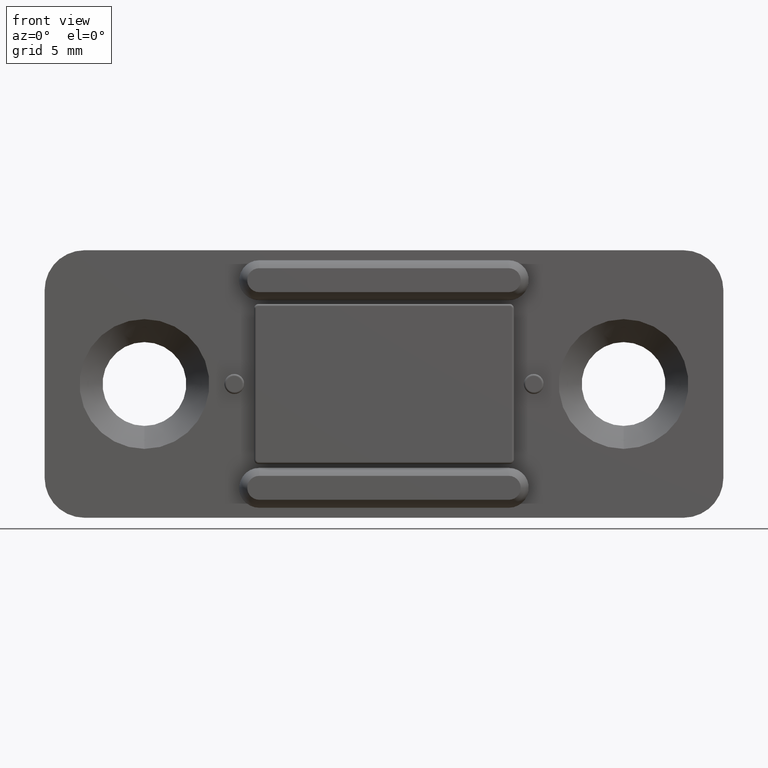
[diagram: clean part render]
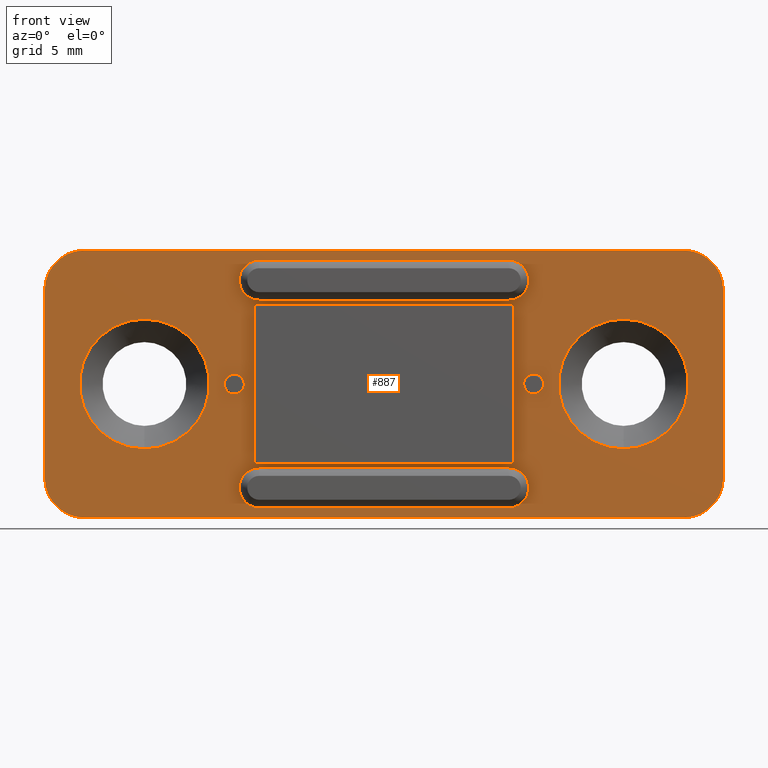
[diagram: same view with one face highlighted and labeled with its STEP entity id]
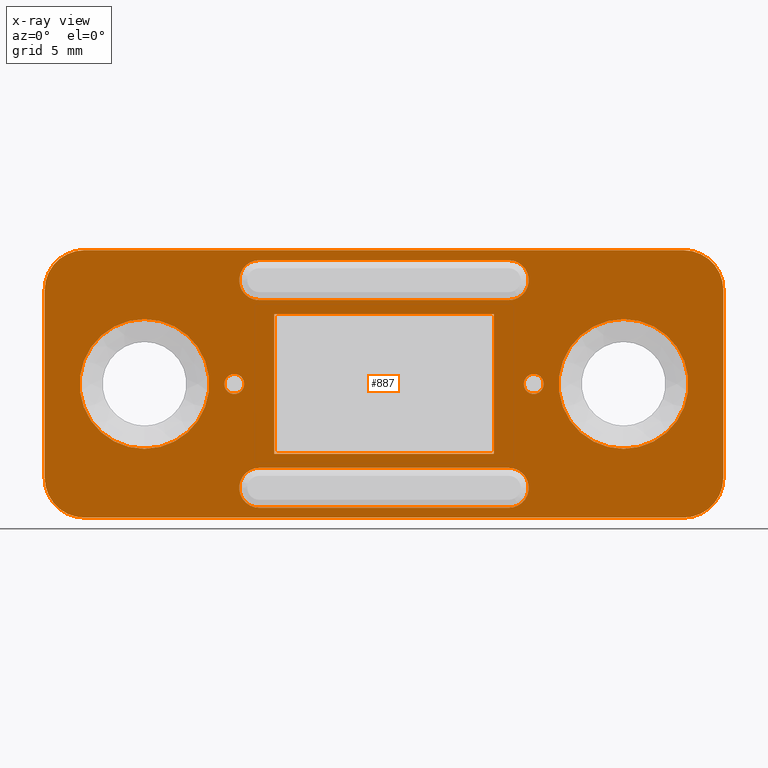
[diagram: x-ray of the same camera — body ghosted, the highlighted face saturated]
A machine part, front view. The second image highlights one B-rep face of the part: STEP entity #887.
The next image is the same camera in x-ray: the body ghosted, the highlighted face saturated — about 0% of this face is hidden behind the body in this view.
In plain terms, the highlighted planar face has unit normal (0, 1, 0).
Its self-contained STEP definition (entity closure, byte-faithful):
#4 = EDGE_LOOP ( 'NONE', ( #728, #1283 ) ) ;
#17 = ORIENTED_EDGE ( 'NONE', *, *, #408, .F. ) ;
#24 = CARTESIAN_POINT ( 'NONE',  ( -12.00000000000000000, 1.989519660128279800E-013, -3.250000000000206100 ) ) ;
#36 = VECTOR ( 'NONE', #1925, 1000.000000000000000 ) ;
#46 = ORIENTED_EDGE ( 'NONE', *, *, #2018, .F. ) ;
#58 = ORIENTED_EDGE ( 'NONE', *, *, #1915, .T. ) ;
#59 = CIRCLE ( 'NONE', #1117, 1.000000000000000000 ) ;
#60 = AXIS2_PLACEMENT_3D ( 'NONE', #1876, #2050, #850 ) ;
#72 = EDGE_CURVE ( 'NONE', #1140, #635, #1434, .T. ) ;
#73 = DIRECTION ( 'NONE',  ( 0.0000000000000000000, 0.0000000000000000000, -1.000000000000000000 ) ) ;
#74 = CARTESIAN_POINT ( 'NONE',  ( 0.0000000000000000000, 0.0000000000000000000, 6.699999999999900700 ) ) ;
#85 = CARTESIAN_POINT ( 'NONE',  ( 12.00000000000000000, 0.0000000000000000000, 0.0000000000000000000 ) ) ;
#86 = CIRCLE ( 'NONE', #973, 3.250000000000229600 ) ;
#104 = ORIENTED_EDGE ( 'NONE', *, *, #127, .T. ) ;
#109 = VERTEX_POINT ( 'NONE', #2025 ) ;
#125 = CIRCLE ( 'NONE', #390, 0.5000000000000000000 ) ;
#127 = EDGE_CURVE ( 'NONE', #1118, #305, #1324, .T. ) ;
#140 = CIRCLE ( 'NONE', #830, 2.000000000000000000 ) ;
#157 = CARTESIAN_POINT ( 'NONE',  ( 0.0000000000000000000, 0.0000000000000000000, -3.500000000000000000 ) ) ;
#166 = VERTEX_POINT ( 'NONE', #998 ) ;
#170 = VERTEX_POINT ( 'NONE', #24 ) ;
#173 = VECTOR ( 'NONE', #1658, 1000.000000000000000 ) ;
#182 = DIRECTION ( 'NONE',  ( 0.0000000000000000000, 1.000000000000000000, 0.0000000000000000000 ) ) ;
#211 = FACE_BOUND ( 'NONE', #398, .T. ) ;
#215 = VERTEX_POINT ( 'NONE', #1995 ) ;
#224 = EDGE_CURVE ( 'NONE', #725, #1118, #729, .T. ) ;
#228 = DIRECTION ( 'NONE',  ( 0.0000000000000000000, 1.000000000000000000, 0.0000000000000000000 ) ) ;
#271 = FACE_BOUND ( 'NONE', #4, .T. ) ;
#281 = EDGE_CURVE ( 'NONE', #946, #529, #140, .T. ) ;
#282 = VECTOR ( 'NONE', #1068, 1000.000000000000000 ) ;
#284 = DIRECTION ( 'NONE',  ( 0.0000000000000000000, 1.000000000000000000, 0.0000000000000000000 ) ) ;
#305 = VERTEX_POINT ( 'NONE', #868 ) ;
#306 = EDGE_LOOP ( 'NONE', ( #46, #1388 ) ) ;
#310 = EDGE_CURVE ( 'NONE', #1957, #725, #1821, .T. ) ;
#311 = CARTESIAN_POINT ( 'NONE',  ( -17.00000000000000000, 0.0000000000000000000, -4.700000000000000200 ) ) ;
#314 = VERTEX_POINT ( 'NONE', #1548 ) ;
#317 = DIRECTION ( 'NONE',  ( -0.0000000000000000000, -1.000000000000000000, -0.0000000000000000000 ) ) ;
#345 = EDGE_CURVE ( 'NONE', #1084, #2161, #518, .T. ) ;
#352 = EDGE_LOOP ( 'NONE', ( #1728, #1219, #630, #859 ) ) ;
#367 = FACE_BOUND ( 'NONE', #439, .T. ) ;
#375 = EDGE_CURVE ( 'NONE', #1524, #946, #963, .T. ) ;
#384 = VECTOR ( 'NONE', #2081, 1000.000000000000000 ) ;
#385 = CARTESIAN_POINT ( 'NONE',  ( 5.500000000000000000, 0.0000000000000000000, 3.500000000000000000 ) ) ;
#390 = AXIS2_PLACEMENT_3D ( 'NONE', #1611, #1492, #1469 ) ;
#398 = EDGE_LOOP ( 'NONE', ( #1700, #2049, #588, #17 ) ) ;
#402 = ORIENTED_EDGE ( 'NONE', *, *, #310, .T. ) ;
#408 = EDGE_CURVE ( 'NONE', #471, #1646, #698, .T. ) ;
#419 = CARTESIAN_POINT ( 'NONE',  ( 5.500000000000000000, 0.0000000000000000000, 0.0000000000000000000 ) ) ;
#436 = LINE ( 'NONE', #74, #384 ) ;
#439 = EDGE_LOOP ( 'NONE', ( #690, #497 ) ) ;
#465 = CARTESIAN_POINT ( 'NONE',  ( 7.500000000000000000, 0.0000000000000000000, -0.5000000000000000000 ) ) ;
#471 = VERTEX_POINT ( 'NONE', #925 ) ;
#474 = VERTEX_POINT ( 'NONE', #702 ) ;
#476 = ORIENTED_EDGE ( 'NONE', *, *, #596, .T. ) ;
#497 = ORIENTED_EDGE ( 'NONE', *, *, #1834, .F. ) ;
#515 = CIRCLE ( 'NONE', #746, 2.000000000000000000 ) ;
#518 = CIRCLE ( 'NONE', #1498, 0.5000000000000000000 ) ;
#529 = VERTEX_POINT ( 'NONE', #1881 ) ;
#546 = LINE ( 'NONE', #1467, #1378 ) ;
#550 = VERTEX_POINT ( 'NONE', #465 ) ;
#584 = EDGE_CURVE ( 'NONE', #471, #904, #59, .T. ) ;
#588 = ORIENTED_EDGE ( 'NONE', *, *, #1025, .T. ) ;
#594 = EDGE_LOOP ( 'NONE', ( #1352, #862, #1301, #58, #2154, #833, #780, #1221 ) ) ;
#596 = EDGE_CURVE ( 'NONE', #635, #1140, #1213, .T. ) ;
#597 = CARTESIAN_POINT ( 'NONE',  ( -12.00000000000000000, 1.989519660128279800E-013, 0.0000000000000000000 ) ) ;
#621 = VECTOR ( 'NONE', #1150, 1000.000000000000000 ) ;
#630 = ORIENTED_EDGE ( 'NONE', *, *, #2074, .T. ) ;
#635 = VERTEX_POINT ( 'NONE', #1943 ) ;
#646 = FACE_OUTER_BOUND ( 'NONE', #594, .T. ) ;
#652 = CARTESIAN_POINT ( 'NONE',  ( 0.0000000000000000000, 0.0000000000000000000, 0.0000000000000000000 ) ) ;
#661 = CARTESIAN_POINT ( 'NONE',  ( 15.00000000000000000, 0.0000000000000000000, 4.699999999999900700 ) ) ;
#664 = DIRECTION ( 'NONE',  ( -1.000000000000000000, -0.0000000000000000000, -0.0000000000000000000 ) ) ;
#665 = DIRECTION ( 'NONE',  ( -0.0000000000000000000, -1.000000000000000000, -0.0000000000000000000 ) ) ;
#666 = LINE ( 'NONE', #864, #621 ) ;
#667 = DIRECTION ( 'NONE',  ( 0.0000000000000000000, 0.0000000000000000000, 1.000000000000000000 ) ) ;
#672 = DIRECTION ( 'NONE',  ( -0.0000000000000000000, -0.0000000000000000000, 1.000000000000000000 ) ) ;
#685 = DIRECTION ( 'NONE',  ( 0.0000000000000000000, 0.0000000000000000000, 1.000000000000000000 ) ) ;
#690 = ORIENTED_EDGE ( 'NONE', *, *, #1725, .F. ) ;
#698 = LINE ( 'NONE', #1076, #1248 ) ;
#702 = CARTESIAN_POINT ( 'NONE',  ( 17.00000000000000000, 0.0000000000000000000, 4.699999999999900700 ) ) ;
#703 = AXIS2_PLACEMENT_3D ( 'NONE', #1433, #284, #1266 ) ;
#705 = CARTESIAN_POINT ( 'NONE',  ( -15.00000000000000000, 0.0000000000000000000, -4.700000000000000200 ) ) ;
#707 = LINE ( 'NONE', #157, #173 ) ;
#721 = AXIS2_PLACEMENT_3D ( 'NONE', #1471, #317, #1302 ) ;
#725 = VERTEX_POINT ( 'NONE', #1797 ) ;
#728 = ORIENTED_EDGE ( 'NONE', *, *, #918, .T. ) ;
#729 = CIRCLE ( 'NONE', #60, 1.000000000000000000 ) ;
#741 = EDGE_CURVE ( 'NONE', #215, #1008, #515, .T. ) ;
#746 = AXIS2_PLACEMENT_3D ( 'NONE', #1710, #1888, #685 ) ;
#751 = DIRECTION ( 'NONE',  ( -0.0000000000000000000, -0.0000000000000000000, -1.000000000000000000 ) ) ;
#758 = DIRECTION ( 'NONE',  ( 0.0000000000000000000, 0.0000000000000000000, 1.000000000000000000 ) ) ;
#759 = CARTESIAN_POINT ( 'NONE',  ( -5.500000000000000000, 0.0000000000000000000, 3.500000000000000000 ) ) ;
#780 = ORIENTED_EDGE ( 'NONE', *, *, #1744, .T. ) ;
#789 = DIRECTION ( 'NONE',  ( 0.0000000000000000000, 1.000000000000000000, 0.0000000000000000000 ) ) ;
#797 = EDGE_CURVE ( 'NONE', #109, #170, #86, .T. ) ;
#809 = EDGE_LOOP ( 'NONE', ( #1369, #402, #1332, #104 ) ) ;
#822 = CARTESIAN_POINT ( 'NONE',  ( 0.0000000000000000000, 0.0000000000000000000, 4.200000000000000200 ) ) ;
#826 = DIRECTION ( 'NONE',  ( 0.0000000000000000000, -1.000000000000000000, 0.0000000000000000000 ) ) ;
#830 = AXIS2_PLACEMENT_3D ( 'NONE', #705, #1901, #875 ) ;
#833 = ORIENTED_EDGE ( 'NONE', *, *, #1931, .T. ) ;
#850 = DIRECTION ( 'NONE',  ( 0.0000000000000000000, 0.0000000000000000000, 1.000000000000000000 ) ) ;
#855 = CARTESIAN_POINT ( 'NONE',  ( -6.250000000000000000, 0.0000000000000000000, -5.200000000000000200 ) ) ;
#859 = ORIENTED_EDGE ( 'NONE', *, *, #1999, .T. ) ;
#862 = ORIENTED_EDGE ( 'NONE', *, *, #375, .T. ) ;
#863 = CARTESIAN_POINT ( 'NONE',  ( 12.00000000000000000, 0.0000000000000000000, -3.250000000004204600 ) ) ;
#864 = CARTESIAN_POINT ( 'NONE',  ( 7.250000000000460100, 0.0000000000000000000, -4.200000000000000200 ) ) ;
#866 = CIRCLE ( 'NONE', #984, 0.5000000000000000000 ) ;
#868 = CARTESIAN_POINT ( 'NONE',  ( -6.250000000000110100, 0.0000000000000000000, 4.200000000000000200 ) ) ;
#875 = DIRECTION ( 'NONE',  ( 0.0000000000000000000, 0.0000000000000000000, 1.000000000000000000 ) ) ;
#885 = CARTESIAN_POINT ( 'NONE',  ( -5.500000000000000000, 0.0000000000000000000, 0.0000000000000000000 ) ) ;
#887 = ADVANCED_FACE ( 'NONE', ( #2010, #367, #1131, #271, #1533, #1079, #646, #211 ), #1148, .F. ) ;
#892 = CARTESIAN_POINT ( 'NONE',  ( -7.500000000000000000, 0.0000000000000000000, 0.0000000000000000000 ) ) ;
#904 = VERTEX_POINT ( 'NONE', #979 ) ;
#918 = EDGE_CURVE ( 'NONE', #170, #109, #1898, .T. ) ;
#925 = CARTESIAN_POINT ( 'NONE',  ( -6.250000000000000000, 0.0000000000000000000, -6.200000000000000200 ) ) ;
#930 = EDGE_CURVE ( 'NONE', #1675, #1113, #546, .T. ) ;
#946 = VERTEX_POINT ( 'NONE', #311 ) ;
#951 = DIRECTION ( 'NONE',  ( 0.0000000000000000000, 1.000000000000000000, 0.0000000000000000000 ) ) ;
#962 = CARTESIAN_POINT ( 'NONE',  ( 6.249999999999889900, 0.0000000000000000000, -6.200000000000000200 ) ) ;
#963 = LINE ( 'NONE', #2100, #36 ) ;
#968 = DIRECTION ( 'NONE',  ( 0.0000000000000000000, 1.000000000000000000, 0.0000000000000000000 ) ) ;
#973 = AXIS2_PLACEMENT_3D ( 'NONE', #597, #1771, #758 ) ;
#979 = CARTESIAN_POINT ( 'NONE',  ( -6.250000000000000000, 0.0000000000000000000, -4.200000000000000200 ) ) ;
#984 = AXIS2_PLACEMENT_3D ( 'NONE', #1671, #1496, #1716 ) ;
#998 = CARTESIAN_POINT ( 'NONE',  ( 7.500000000000000000, 0.0000000000000000000, 0.5000000000000000000 ) ) ;
#1008 = VERTEX_POINT ( 'NONE', #1977 ) ;
#1025 = EDGE_CURVE ( 'NONE', #1194, #1646, #1211, .T. ) ;
#1030 = CARTESIAN_POINT ( 'NONE',  ( 6.250000000000000000, 0.0000000000000000000, 4.200000000000000200 ) ) ;
#1039 = CARTESIAN_POINT ( 'NONE',  ( -7.500000000000000000, 0.0000000000000000000, -0.5000000000000000000 ) ) ;
#1045 = DIRECTION ( 'NONE',  ( 0.0000000000000000000, -1.000000000000000000, 0.0000000000000000000 ) ) ;
#1055 = CARTESIAN_POINT ( 'NONE',  ( 17.00000000000000000, 0.0000000000000000000, 0.0000000000000000000 ) ) ;
#1068 = DIRECTION ( 'NONE',  ( -0.0000000000000000000, -0.0000000000000000000, 1.000000000000000000 ) ) ;
#1076 = CARTESIAN_POINT ( 'NONE',  ( -7.249999999999430700, 0.0000000000000000000, -6.200000000000000200 ) ) ;
#1079 = FACE_BOUND ( 'NONE', #809, .T. ) ;
#1084 = VERTEX_POINT ( 'NONE', #1039 ) ;
#1113 = VERTEX_POINT ( 'NONE', #385 ) ;
#1117 = AXIS2_PLACEMENT_3D ( 'NONE', #855, #951, #667 ) ;
#1118 = VERTEX_POINT ( 'NONE', #1030 ) ;
#1124 = VERTEX_POINT ( 'NONE', #1895 ) ;
#1131 = FACE_BOUND ( 'NONE', #1476, .T. ) ;
#1140 = VERTEX_POINT ( 'NONE', #863 ) ;
#1141 = LINE ( 'NONE', #1144, #2127 ) ;
#1144 = CARTESIAN_POINT ( 'NONE',  ( 0.0000000000000000000, 0.0000000000000000000, -6.700000000000000200 ) ) ;
#1148 = PLANE ( 'NONE',  #1889 ) ;
#1150 = DIRECTION ( 'NONE',  ( -1.000000000000000000, 0.0000000000000000000, 0.0000000000000000000 ) ) ;
#1194 = VERTEX_POINT ( 'NONE', #1563 ) ;
#1200 = AXIS2_PLACEMENT_3D ( 'NONE', #1511, #182, #1678 ) ;
#1203 = DIRECTION ( 'NONE',  ( 0.0000000000000000000, 0.0000000000000000000, 1.000000000000000000 ) ) ;
#1211 = CIRCLE ( 'NONE', #703, 1.000000000000000000 ) ;
#1213 = CIRCLE ( 'NONE', #1817, 3.250000000004204600 ) ;
#1219 = ORIENTED_EDGE ( 'NONE', *, *, #930, .T. ) ;
#1221 = ORIENTED_EDGE ( 'NONE', *, *, #1481, .T. ) ;
#1231 = DIRECTION ( 'NONE',  ( 0.0000000000000000000, 0.0000000000000000000, 1.000000000000000000 ) ) ;
#1248 = VECTOR ( 'NONE', #1959, 1000.000000000000000 ) ;
#1253 = DIRECTION ( 'NONE',  ( 1.000000000000000000, -0.0000000000000000000, -0.0000000000000000000 ) ) ;
#1266 = DIRECTION ( 'NONE',  ( 0.0000000000000000000, 0.0000000000000000000, 1.000000000000000000 ) ) ;
#1269 = VECTOR ( 'NONE', #672, 1000.000000000000000 ) ;
#1283 = ORIENTED_EDGE ( 'NONE', *, *, #797, .T. ) ;
#1293 = VERTEX_POINT ( 'NONE', #1719 ) ;
#1294 = CIRCLE ( 'NONE', #1703, 0.5000000000000000000 ) ;
#1301 = ORIENTED_EDGE ( 'NONE', *, *, #281, .T. ) ;
#1302 = DIRECTION ( 'NONE',  ( 0.0000000000000000000, 0.0000000000000000000, 1.000000000000000000 ) ) ;
#1324 = LINE ( 'NONE', #822, #1385 ) ;
#1332 = ORIENTED_EDGE ( 'NONE', *, *, #224, .T. ) ;
#1351 = VECTOR ( 'NONE', #1713, 1000.000000000000000 ) ;
#1352 = ORIENTED_EDGE ( 'NONE', *, *, #2083, .T. ) ;
#1369 = ORIENTED_EDGE ( 'NONE', *, *, #2146, .T. ) ;
#1378 = VECTOR ( 'NONE', #1820, 1000.000000000000000 ) ;
#1385 = VECTOR ( 'NONE', #664, 1000.000000000000000 ) ;
#1388 = ORIENTED_EDGE ( 'NONE', *, *, #345, .F. ) ;
#1433 = CARTESIAN_POINT ( 'NONE',  ( 6.249999999999889900, 0.0000000000000000000, -5.200000000000000200 ) ) ;
#1434 = CIRCLE ( 'NONE', #1200, 3.250000000004204600 ) ;
#1455 = CARTESIAN_POINT ( 'NONE',  ( -6.250000000000110100, 0.0000000000000000000, 6.200000000000000200 ) ) ;
#1456 = CARTESIAN_POINT ( 'NONE',  ( -7.500000000000000000, 0.0000000000000000000, 0.5000000000000000000 ) ) ;
#1467 = CARTESIAN_POINT ( 'NONE',  ( 0.0000000000000000000, 0.0000000000000000000, 3.500000000000000000 ) ) ;
#1468 = EDGE_CURVE ( 'NONE', #1818, #1675, #1718, .T. ) ;
#1469 = DIRECTION ( 'NONE',  ( 0.0000000000000000000, 0.0000000000000000000, -1.000000000000000000 ) ) ;
#1471 = CARTESIAN_POINT ( 'NONE',  ( -15.00000000000000000, 0.0000000000000000000, 4.699999999999900700 ) ) ;
#1476 = EDGE_LOOP ( 'NONE', ( #1765, #476 ) ) ;
#1481 = EDGE_CURVE ( 'NONE', #1293, #314, #436, .T. ) ;
#1492 = DIRECTION ( 'NONE',  ( 0.0000000000000000000, -1.000000000000000000, 0.0000000000000000000 ) ) ;
#1496 = DIRECTION ( 'NONE',  ( 0.0000000000000000000, -1.000000000000000000, 0.0000000000000000000 ) ) ;
#1498 = AXIS2_PLACEMENT_3D ( 'NONE', #892, #1045, #73 ) ;
#1511 = CARTESIAN_POINT ( 'NONE',  ( 12.00000000000000000, 0.0000000000000000000, 0.0000000000000000000 ) ) ;
#1524 = VERTEX_POINT ( 'NONE', #2012 ) ;
#1533 = FACE_BOUND ( 'NONE', #352, .T. ) ;
#1540 = CARTESIAN_POINT ( 'NONE',  ( 0.0000000000000000000, 0.0000000000000000000, 6.200000000000000200 ) ) ;
#1548 = CARTESIAN_POINT ( 'NONE',  ( -15.00000000000000000, 0.0000000000000000000, 6.699999999999900700 ) ) ;
#1563 = CARTESIAN_POINT ( 'NONE',  ( 6.249999999999889900, 0.0000000000000000000, -4.200000000000000200 ) ) ;
#1586 = EDGE_CURVE ( 'NONE', #1194, #904, #666, .T. ) ;
#1602 = CARTESIAN_POINT ( 'NONE',  ( -5.500000000000000000, 0.0000000000000000000, -3.500000000000000000 ) ) ;
#1611 = CARTESIAN_POINT ( 'NONE',  ( -7.500000000000000000, 0.0000000000000000000, 0.0000000000000000000 ) ) ;
#1618 = DIRECTION ( 'NONE',  ( 0.0000000000000000000, 0.0000000000000000000, -1.000000000000000000 ) ) ;
#1628 = CIRCLE ( 'NONE', #1858, 1.000000000000000000 ) ;
#1646 = VERTEX_POINT ( 'NONE', #962 ) ;
#1658 = DIRECTION ( 'NONE',  ( -1.000000000000000000, -0.0000000000000000000, -0.0000000000000000000 ) ) ;
#1671 = CARTESIAN_POINT ( 'NONE',  ( 7.500000000000000000, 0.0000000000000000000, 0.0000000000000000000 ) ) ;
#1675 = VERTEX_POINT ( 'NONE', #759 ) ;
#1678 = DIRECTION ( 'NONE',  ( 0.0000000000000000000, 0.0000000000000000000, 1.000000000000000000 ) ) ;
#1682 = VECTOR ( 'NONE', #751, 1000.000000000000000 ) ;
#1683 = CARTESIAN_POINT ( 'NONE',  ( 7.500000000000000000, 0.0000000000000000000, 0.0000000000000000000 ) ) ;
#1690 = CIRCLE ( 'NONE', #1955, 2.000000000000000000 ) ;
#1700 = ORIENTED_EDGE ( 'NONE', *, *, #584, .T. ) ;
#1703 = AXIS2_PLACEMENT_3D ( 'NONE', #1683, #826, #1618 ) ;
#1710 = CARTESIAN_POINT ( 'NONE',  ( 15.00000000000000000, 0.0000000000000000000, -4.700000000000000200 ) ) ;
#1713 = DIRECTION ( 'NONE',  ( 1.000000000000000000, -0.0000000000000000000, -0.0000000000000000000 ) ) ;
#1716 = DIRECTION ( 'NONE',  ( 0.0000000000000000000, 0.0000000000000000000, -1.000000000000000000 ) ) ;
#1718 = LINE ( 'NONE', #885, #1269 ) ;
#1719 = CARTESIAN_POINT ( 'NONE',  ( 15.00000000000000000, 0.0000000000000000000, 6.699999999999900700 ) ) ;
#1725 = EDGE_CURVE ( 'NONE', #166, #550, #1294, .T. ) ;
#1728 = ORIENTED_EDGE ( 'NONE', *, *, #1468, .T. ) ;
#1735 = CIRCLE ( 'NONE', #721, 2.000000000000000000 ) ;
#1744 = EDGE_CURVE ( 'NONE', #474, #1293, #1690, .T. ) ;
#1765 = ORIENTED_EDGE ( 'NONE', *, *, #72, .T. ) ;
#1771 = DIRECTION ( 'NONE',  ( 0.0000000000000000000, 1.000000000000000000, 0.0000000000000000000 ) ) ;
#1797 = CARTESIAN_POINT ( 'NONE',  ( 6.250000000000000000, 0.0000000000000000000, 6.200000000000000200 ) ) ;
#1806 = DIRECTION ( 'NONE',  ( 0.0000000000000000000, 0.0000000000000000000, 1.000000000000000000 ) ) ;
#1817 = AXIS2_PLACEMENT_3D ( 'NONE', #85, #2105, #1231 ) ;
#1818 = VERTEX_POINT ( 'NONE', #1602 ) ;
#1820 = DIRECTION ( 'NONE',  ( 1.000000000000000000, -0.0000000000000000000, -0.0000000000000000000 ) ) ;
#1821 = LINE ( 'NONE', #1540, #1351 ) ;
#1834 = EDGE_CURVE ( 'NONE', #550, #166, #866, .T. ) ;
#1858 = AXIS2_PLACEMENT_3D ( 'NONE', #1990, #789, #1806 ) ;
#1876 = CARTESIAN_POINT ( 'NONE',  ( 6.250000000000000000, 0.0000000000000000000, 5.200000000000000200 ) ) ;
#1881 = CARTESIAN_POINT ( 'NONE',  ( -15.00000000000000000, 0.0000000000000000000, -6.700000000000000200 ) ) ;
#1888 = DIRECTION ( 'NONE',  ( -0.0000000000000000000, -1.000000000000000000, -0.0000000000000000000 ) ) ;
#1889 = AXIS2_PLACEMENT_3D ( 'NONE', #652, #228, #1203 ) ;
#1895 = CARTESIAN_POINT ( 'NONE',  ( 5.500000000000000000, 0.0000000000000000000, -3.500000000000000000 ) ) ;
#1898 = CIRCLE ( 'NONE', #2125, 3.250000000000229600 ) ;
#1901 = DIRECTION ( 'NONE',  ( -0.0000000000000000000, -1.000000000000000000, -0.0000000000000000000 ) ) ;
#1915 = EDGE_CURVE ( 'NONE', #529, #215, #1141, .T. ) ;
#1925 = DIRECTION ( 'NONE',  ( -0.0000000000000000000, -0.0000000000000000000, -1.000000000000000000 ) ) ;
#1931 = EDGE_CURVE ( 'NONE', #1008, #474, #2021, .T. ) ;
#1943 = CARTESIAN_POINT ( 'NONE',  ( 12.00000000000000000, 0.0000000000000000000, 3.250000000004204600 ) ) ;
#1954 = DIRECTION ( 'NONE',  ( 0.0000000000000000000, 0.0000000000000000000, 1.000000000000000000 ) ) ;
#1955 = AXIS2_PLACEMENT_3D ( 'NONE', #661, #665, #1954 ) ;
#1957 = VERTEX_POINT ( 'NONE', #1455 ) ;
#1959 = DIRECTION ( 'NONE',  ( 1.000000000000000000, 0.0000000000000000000, 0.0000000000000000000 ) ) ;
#1977 = CARTESIAN_POINT ( 'NONE',  ( 17.00000000000000000, 0.0000000000000000000, -4.700000000000000200 ) ) ;
#1990 = CARTESIAN_POINT ( 'NONE',  ( -6.250000000000110100, 0.0000000000000000000, 5.200000000000000200 ) ) ;
#1995 = CARTESIAN_POINT ( 'NONE',  ( 15.00000000000000000, 0.0000000000000000000, -6.700000000000000200 ) ) ;
#1999 = EDGE_CURVE ( 'NONE', #1124, #1818, #707, .T. ) ;
#2005 = DIRECTION ( 'NONE',  ( 0.0000000000000000000, 0.0000000000000000000, 1.000000000000000000 ) ) ;
#2010 = FACE_BOUND ( 'NONE', #306, .T. ) ;
#2012 = CARTESIAN_POINT ( 'NONE',  ( -17.00000000000000000, 0.0000000000000000000, 4.699999999999900700 ) ) ;
#2018 = EDGE_CURVE ( 'NONE', #2161, #1084, #125, .T. ) ;
#2021 = LINE ( 'NONE', #1055, #282 ) ;
#2025 = CARTESIAN_POINT ( 'NONE',  ( -12.00000000000000000, 1.989519660128279800E-013, 3.250000000000206100 ) ) ;
#2049 = ORIENTED_EDGE ( 'NONE', *, *, #1586, .F. ) ;
#2050 = DIRECTION ( 'NONE',  ( 0.0000000000000000000, 1.000000000000000000, 0.0000000000000000000 ) ) ;
#2074 = EDGE_CURVE ( 'NONE', #1113, #1124, #2155, .T. ) ;
#2081 = DIRECTION ( 'NONE',  ( -1.000000000000000000, -0.0000000000000000000, -0.0000000000000000000 ) ) ;
#2083 = EDGE_CURVE ( 'NONE', #314, #1524, #1735, .T. ) ;
#2100 = CARTESIAN_POINT ( 'NONE',  ( -17.00000000000000000, 0.0000000000000000000, 0.0000000000000000000 ) ) ;
#2105 = DIRECTION ( 'NONE',  ( 0.0000000000000000000, 1.000000000000000000, 0.0000000000000000000 ) ) ;
#2125 = AXIS2_PLACEMENT_3D ( 'NONE', #2170, #968, #2005 ) ;
#2127 = VECTOR ( 'NONE', #1253, 1000.000000000000000 ) ;
#2146 = EDGE_CURVE ( 'NONE', #305, #1957, #1628, .T. ) ;
#2154 = ORIENTED_EDGE ( 'NONE', *, *, #741, .T. ) ;
#2155 = LINE ( 'NONE', #419, #1682 ) ;
#2161 = VERTEX_POINT ( 'NONE', #1456 ) ;
#2170 = CARTESIAN_POINT ( 'NONE',  ( -12.00000000000000000, 1.989519660128279800E-013, 0.0000000000000000000 ) ) ;